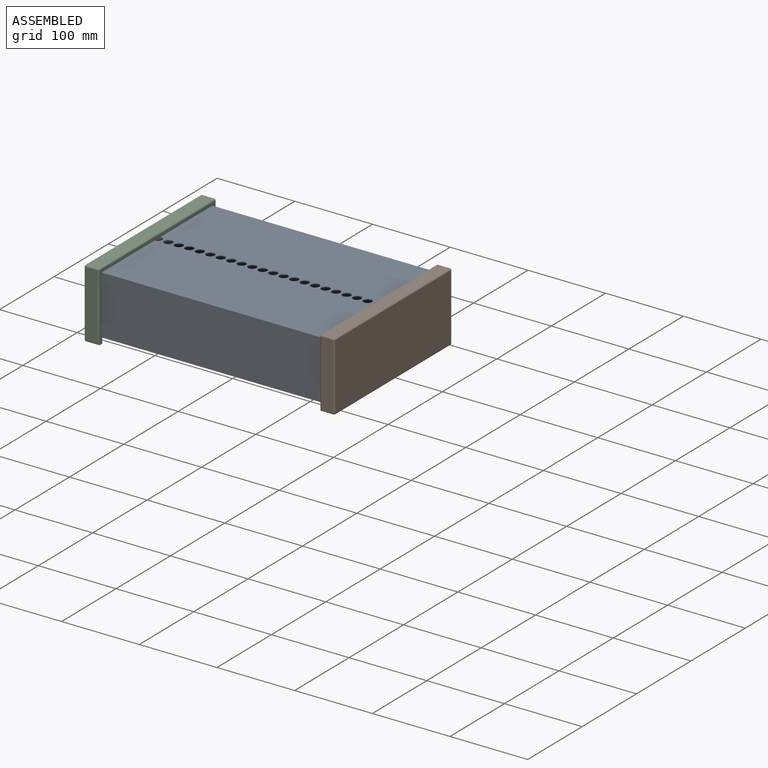
[diagram: assembled view]
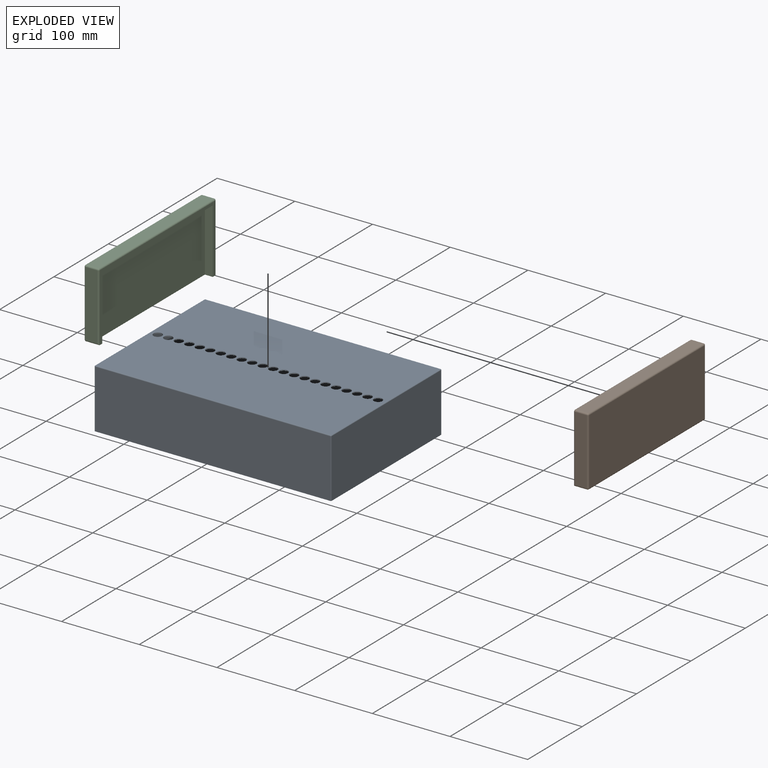
[diagram: exploded view]
GUIDED TOUR — MATED ASSEMBLY (Onshape document 46d64293dee30881ef092de6, AutoMate assembly 46d64293dee30881ef092de6_4c1113762a8dfd74307f1866_f7a12be5941819f00fa95c3b_default)

This assembly has 3 components, labeled P0..P2 below (a component is one placed occurrence of a part; the same part can appear more than once), held together by 4 mates. A mate is a constraint between two components; its type names the relative motion it leaves free:
  PLANAR — leaves sliding in the plane through the listed point (normal = the listed direction) and rotation about that normal free.
Axis/direction vectors are unit vectors and 'through' points are millimeter coordinates, both in the assembly's world frame.

MATES
  1. PLANAR "Planar 4": P1 <-> P0, direction (0.000, 0.000, -1.000) through (162.93, 0.00, -3.69) mm
  2. PLANAR "Planar 2": P1 <-> P0, direction (-1.000, 0.000, 0.000) through (168.01, 0.00, -45.29) mm
  3. PLANAR "Planar 1": P2 <-> P0, direction (1.000, 0.000, 0.000) through (-136.79, 0.00, -45.29) mm
  4. PLANAR "Planar 3": P2 <-> P0, direction (0.000, 0.000, -1.000) through (-131.71, 0.00, -3.69) mm

ASSEMBLY ORDER
  1. P2 — the base component [order verified]
  2. P0 [order verified]
  3. P1 [order verified]
Order-tag legend:
  [order verified] — this step's position reverses a verified removal order: the component was checked to insert without passing through the ones already placed.

Of the 3 components, 3 carry the full construction recipe — the FeatureScript program that regenerates the part's solid from scratch; the rest are supplied as boundary geometry only.
Each toured component is shown spotlighted twice — in the assembled view, then in the exploded view, where a leader line traces a displaced component back to its assembled socket (saturated green if recipe-attached, orange if geometry-only; every other component desaturated gray) — followed by its recipe or geometry summary and the mates that hold it.
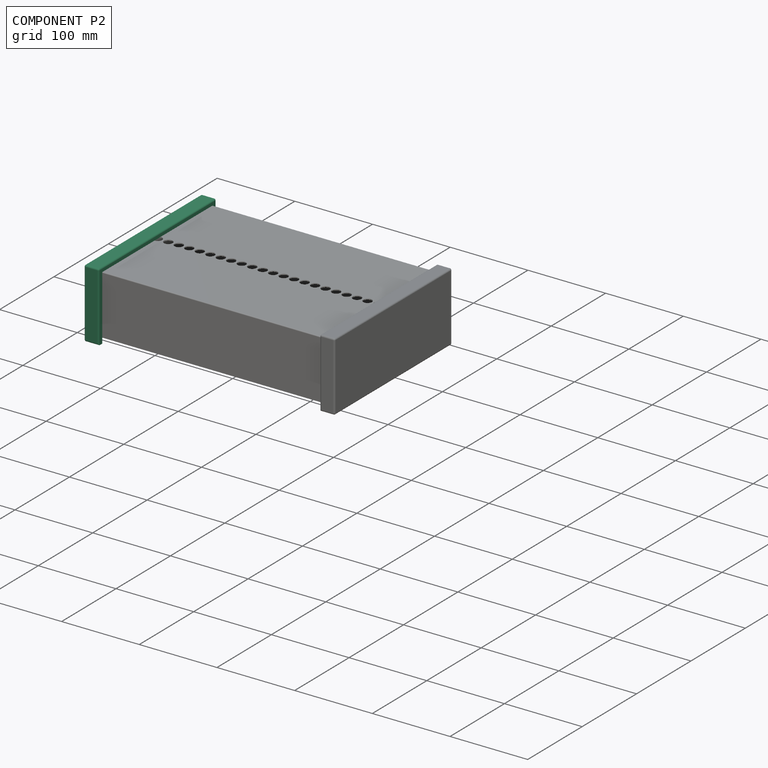
[diagram: component P2 — assembled]
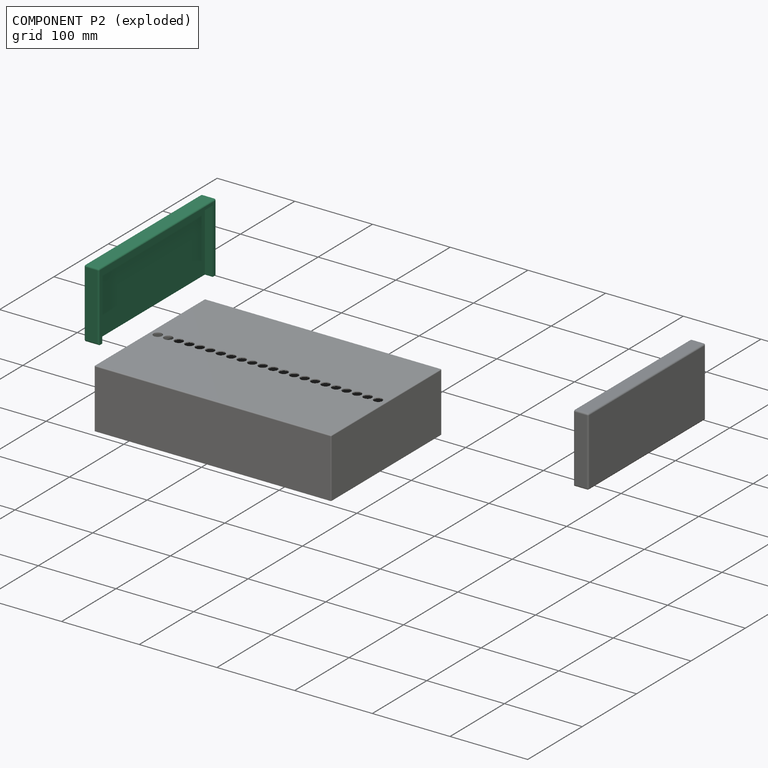
[diagram: component P2 — exploded]
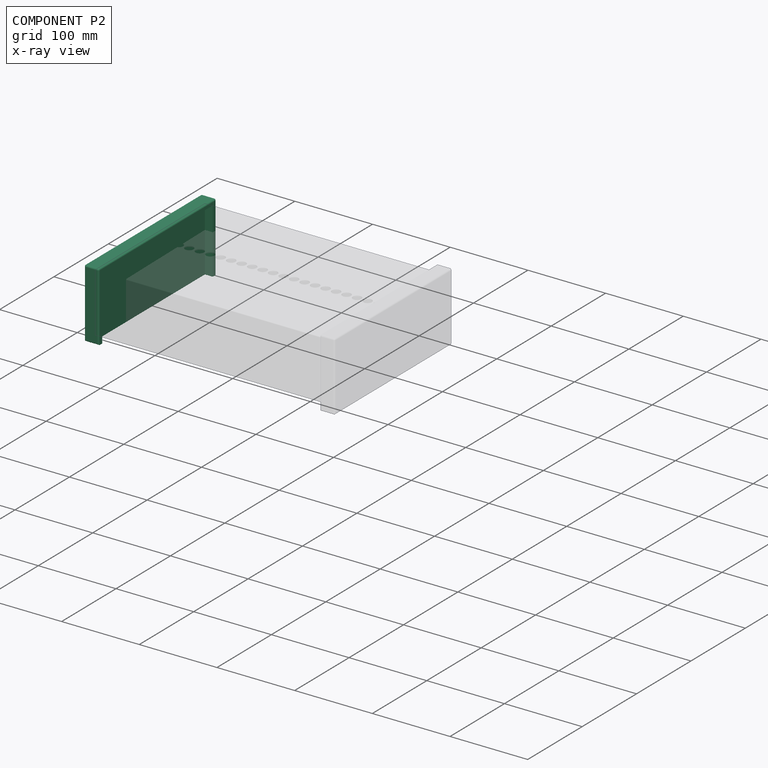
[diagram: component P2 — x-ray view]
COMPONENT P2 — same part as P1 (CADFS 00965437); its construction recipe is shown at P1.
Held by: PLANAR mate "Planar 1" to P0; PLANAR mate "Planar 3" to P0.
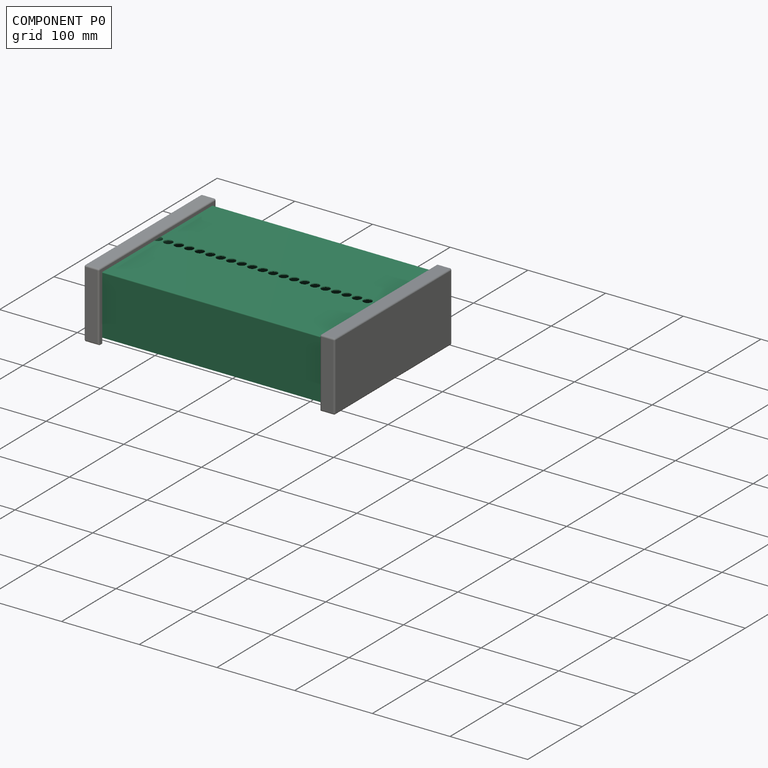
[diagram: component P0 — assembled]
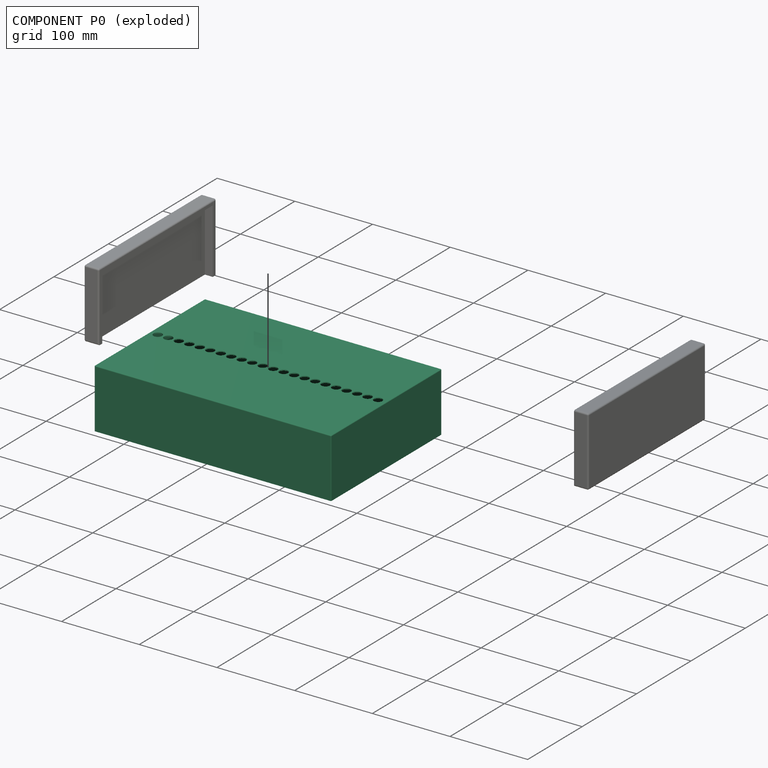
[diagram: component P0 — exploded]
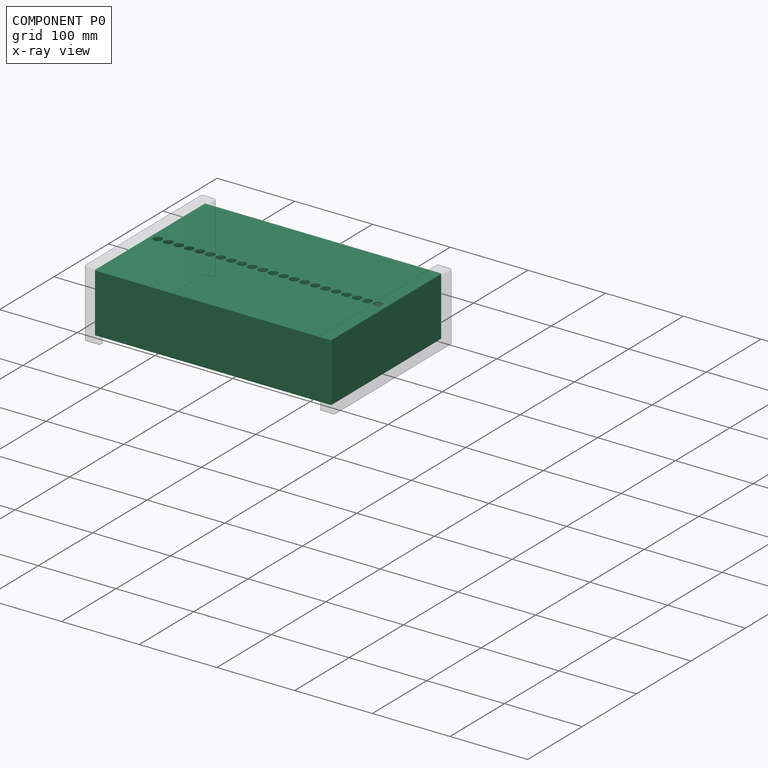
[diagram: component P0 — x-ray view]
COMPONENT P0 — recipe-attached (CADFS 00965439, mesh-verified: the recipe's output STEP matches this component's geometry to below the mesh-comparison resolution (tessellation chordal tolerance ~0.561 mm)).
Held by: PLANAR mate "Planar 4" to P1; PLANAR mate "Planar 2" to P1; PLANAR mate "Planar 1" to P2; PLANAR mate "Planar 3" to P2.
Construction recipe (FeatureScript — the CAD program that rebuilds this solid; sketch coordinates are in the units given by the * unit suffixes, e.g. mm):

FeatureScript 1511;
import(path : "onshape/std/geometry.fs", version : "1511.0");
import(path : "onshape/std/common.fs", version : "1511.0");
const mm = millimeter;
const VERTEX = EntityType.VERTEX;
const EDGE = EntityType.EDGE;
const FACE = EntityType.FACE;
const BODY = EntityType.BODY;
function v(x, y){return vector(x, y);}
function OD(order){return orderDisambiguation(order);}
function OSD(set){return originalSetDisambiguation(set);}
function TD(topology){return topologyDisambiguation(topology);}
function TDD(query){return trueDependencyDisambiguation(query);}
function sQuery(a, b, c) {return sketchEntityQuery(a, b, c);}

annotation { "Feature Type Name" : "Feature", "Feature Type Description" : "" }
export const myFeature = defineFeature(function(context is Context, id is Id, definition is map)
    precondition{}
    {
        {
            var Q0;
            Q0=qCreatedBy(makeId("Top.planeOp"),FACE);
            var sketch = newSketch(context, id + "F0", { "sketchPlane" : qUnion([Q0])});
            skLineSegment(sketch, "E0.bottom", {"start": v(-152.4, 101.6) * mm, "end": v(152.4, 101.6) * mm});
            skLineSegment(sketch, "E0.top", {"start": v(-152.4, -101.6) * mm, "end": v(152.4, -101.6) * mm});
            skLineSegment(sketch, "E0.left", {"start": v(-152.4, 101.6) * mm, "end": v(-152.4, -101.6) * mm});
            skLineSegment(sketch, "E0.right", {"start": v(152.4, 101.6) * mm, "end": v(152.4, -101.6) * mm});
            skPoint(sketch, "E0.middle", {"position": v(0, 0) * mm});
            skSolve(sketch);
        }
        {
            var Q0;
            Q0 = qSketchRegion(id + "F0", true);
            extrude(context, id + "F1", {"entities" : qUnion([Q0]), "depth" : 76.2 * mm, "offsetDistance" : 25 * mm});
        }
        {
            var Q0;
            Q0=makeQuery(id+"F1.opExtrude","CAP_EDGE",EDGE,{"disambiguationData":[OSD([sQuery(id+"F0.wireOp",EDGE,"E0.top")])],"isStart":false});
            var Q1;
            Q1=makeQuery(id+"F1.opExtrude","SWEPT_EDGE",EDGE,{"disambiguationData":[OSD([sQuery(id+"F0.wireOp",EDGE,"E0.top"),sQuery(id+"F0.wireOp",EDGE,"E0.left")])]});
            var Q2;
            Q2=makeQuery(id+"F1.opExtrude","CAP_EDGE",EDGE,{"disambiguationData":[OSD([sQuery(id+"F0.wireOp",EDGE,"E0.left")])],"isStart":false});
            var Q3;
            Q3=makeQuery(id+"F1.opExtrude","CAP_EDGE",EDGE,{"disambiguationData":[OSD([sQuery(id+"F0.wireOp",EDGE,"E0.right")])],"isStart":false});
            var Q4;
            Q4=makeQuery(id+"F1.opExtrude","CAP_EDGE",EDGE,{"disambiguationData":[OSD([sQuery(id+"F0.wireOp",EDGE,"E0.bottom")])],"isStart":false});
            var Q5;
            Q5=makeQuery(id+"F1.opExtrude","SWEPT_EDGE",EDGE,{"disambiguationData":[OSD([sQuery(id+"F0.wireOp",EDGE,"E0.bottom"),sQuery(id+"F0.wireOp",EDGE,"E0.right")])]});
            var Q6;
            Q6=makeQuery(id+"F1.opExtrude","SWEPT_EDGE",EDGE,{"disambiguationData":[OSD([sQuery(id+"F0.wireOp",EDGE,"E0.top"),sQuery(id+"F0.wireOp",EDGE,"E0.right")])]});
            var Q7;
            Q7=makeQuery(id+"F1.opExtrude","SWEPT_EDGE",EDGE,{"disambiguationData":[OSD([sQuery(id+"F0.wireOp",EDGE,"E0.bottom"),sQuery(id+"F0.wireOp",EDGE,"E0.left")])]});
            fillet(context, id + "F2", {"entities" : qUnion([Q0, Q1, Q2, Q3, Q4, Q5, Q6, Q7]), "radius" : 1 * mm, "tangentPropagation" : true, "allowEdgeOverflow" : false});
        }
        {
            var Q0;
            Q0=makeQuery(id+"F1.opExtrude","CAP_FACE",FACE,{"disambiguationData":[OSD([sQuery(id+"F0.wireOp",EDGE,"E0.bottom"),sQuery(id+"F0.wireOp",EDGE,"E0.top"),sQuery(id+"F0.wireOp",EDGE,"E0.left"),sQuery(id+"F0.wireOp",EDGE,"E0.right")])],"isStart":true});
            shell(context, id + "F3", {"entities" : qUnion([Q0]), "thickness" : 1.3 * mm});
        }
        {
            var Q0;
            Q0=makeQuery(id+"F1.opExtrude","CAP_FACE",FACE,{"disambiguationData":[OSD([sQuery(id+"F0.wireOp",EDGE,"E0.bottom"),sQuery(id+"F0.wireOp",EDGE,"E0.top"),sQuery(id+"F0.wireOp",EDGE,"E0.left"),sQuery(id+"F0.wireOp",EDGE,"E0.right")])],"isStart":false});
            var sketch = newSketch(context, id + "F4", { "sketchPlane" : qUnion([Q0])});
            skLineSegment(sketch, "E1", {"start": v(-204.18, 0) * mm, "end": v(190.05, 0) * mm, "construction": true});
            skCircle(sketch, "E2", {"center": v(-141.82, 0) * mm, "radius": 5.5 * mm});
            skCircle(sketch, "E3.1.0.0", {"center": v(-128.32, 0) * mm, "radius": 5.5 * mm});
            skCircle(sketch, "E3.2.0.0", {"center": v(-114.82, 0) * mm, "radius": 5.5 * mm});
            skCircle(sketch, "E3.3.0.0", {"center": v(-101.32, 0) * mm, "radius": 5.5 * mm});
            skCircle(sketch, "E3.4.0.0", {"center": v(-87.82, 0) * mm, "radius": 5.5 * mm});
            skCircle(sketch, "E3.5.0.0", {"center": v(-74.32, 0) * mm, "radius": 5.5 * mm});
            skCircle(sketch, "E3.6.0.0", {"center": v(-60.82, 0) * mm, "radius": 5.5 * mm});
            skCircle(sketch, "E3.7.0.0", {"center": v(-47.32, 0) * mm, "radius": 5.5 * mm});
            skCircle(sketch, "E3.8.0.0", {"center": v(-33.82, 0) * mm, "radius": 5.5 * mm});
            skCircle(sketch, "E3.9.0.0", {"center": v(-20.32, 0) * mm, "radius": 5.5 * mm});
            skCircle(sketch, "E3.10.0.0", {"center": v(-6.82, 0) * mm, "radius": 5.5 * mm});
            skCircle(sketch, "E3.11.0.0", {"center": v(6.68, 0) * mm, "radius": 5.5 * mm});
            skCircle(sketch, "E3.12.0.0", {"center": v(20.18, 0) * mm, "radius": 5.5 * mm});
            skCircle(sketch, "E3.13.0.0", {"center": v(33.68, 0) * mm, "radius": 5.5 * mm});
            skCircle(sketch, "E3.14.0.0", {"center": v(47.18, 0) * mm, "radius": 5.5 * mm});
            skCircle(sketch, "E3.15.0.0", {"center": v(60.68, 0) * mm, "radius": 5.5 * mm});
            skCircle(sketch, "E3.16.0.0", {"center": v(74.18, 0) * mm, "radius": 5.5 * mm});
            skCircle(sketch, "E3.17.0.0", {"center": v(87.68, 0) * mm, "radius": 5.5 * mm});
            skCircle(sketch, "E3.18.0.0", {"center": v(101.18, 0) * mm, "radius": 5.5 * mm});
            skCircle(sketch, "E3.19.0.0", {"center": v(114.68, 0) * mm, "radius": 5.5 * mm});
            skCircle(sketch, "E3.20.0.0", {"center": v(128.18, 0) * mm, "radius": 5.5 * mm});
            skCircle(sketch, "E3.21.0.0", {"center": v(141.68, 0) * mm, "radius": 5.5 * mm});
            skLineSegment(sketch, "E3.direction1", {"start": v(-141.82, 0) * mm, "end": v(-128.32, 0) * mm, "construction": true});
            skLineSegment(sketch, "E4", {"start": v(0, 115.73) * mm, "end": v(0, -128.04) * mm, "construction": true});
            skPoint(sketch, "E4.startSnap0", {"position": v(0, 100.6) * mm});
            skSolve(sketch);
        }
        {
            var Q0;
            Q0 = qSketchRegion(id + "F4", true);
            extrude(context, id + "F5", {"entities" : qUnion([Q0]), "operationType" : NewBodyOperationType.REMOVE, "endBound" : BoundingType.THROUGH_ALL, "oppositeDirection" : true, "depth" : 25 * mm, "offsetDistance" : 25 * mm});
        }
    });
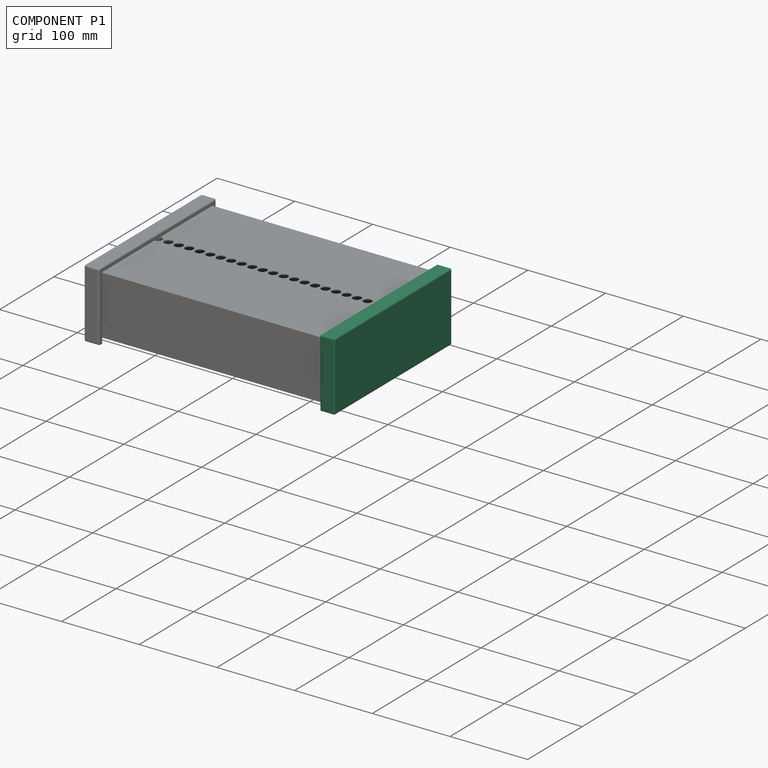
[diagram: component P1 — assembled]
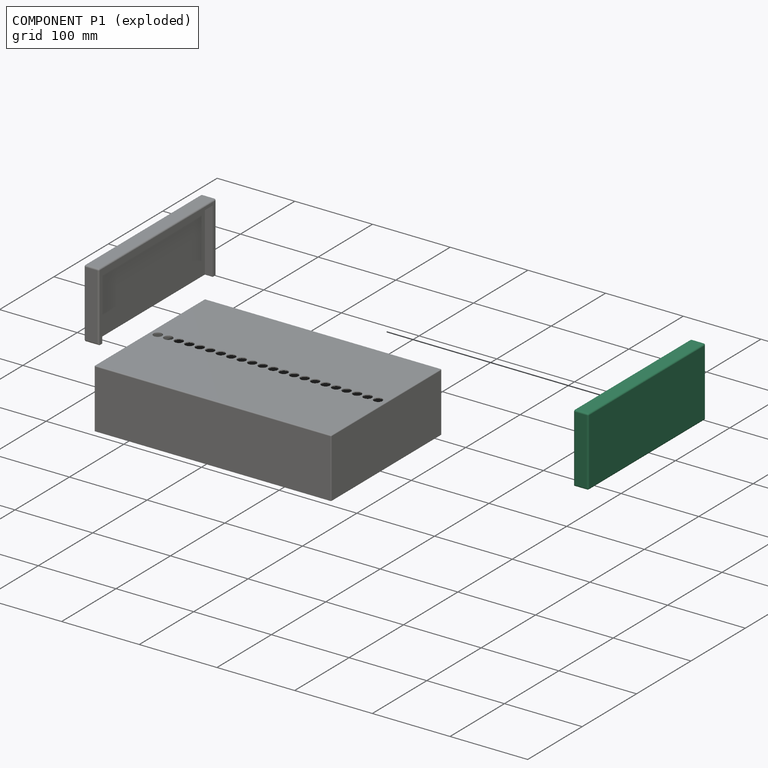
[diagram: component P1 — exploded]
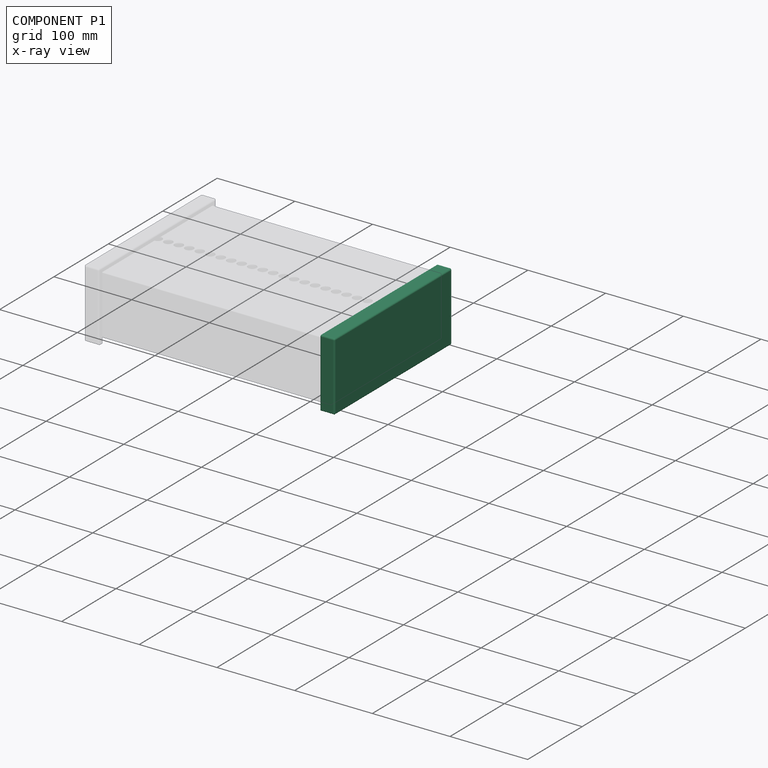
[diagram: component P1 — x-ray view]
COMPONENT P1 — recipe-attached (CADFS 00965437, mesh-verified: the recipe's output STEP matches this component's geometry to below the mesh-comparison resolution (tessellation chordal tolerance ~0.351 mm)).
Held by: PLANAR mate "Planar 4" to P0; PLANAR mate "Planar 2" to P0.
Construction recipe (FeatureScript — the CAD program that rebuilds this solid; sketch coordinates are in the units given by the * unit suffixes, e.g. mm):

FeatureScript 1511;
import(path : "onshape/std/geometry.fs", version : "1511.0");
import(path : "onshape/std/common.fs", version : "1511.0");
const mm = millimeter;
const VERTEX = EntityType.VERTEX;
const EDGE = EntityType.EDGE;
const FACE = EntityType.FACE;
const BODY = EntityType.BODY;
function v(x, y){return vector(x, y);}
function OD(order){return orderDisambiguation(order);}
function OSD(set){return originalSetDisambiguation(set);}
function TD(topology){return topologyDisambiguation(topology);}
function TDD(query){return trueDependencyDisambiguation(query);}
function sQuery(a, b, c) {return sketchEntityQuery(a, b, c);}

annotation { "Feature Type Name" : "Feature", "Feature Type Description" : "" }
export const myFeature = defineFeature(function(context is Context, id is Id, definition is map)
    precondition{}
    {
        {
            var Q0;
            Q0=qCreatedBy(makeId("Top.planeOp"),FACE);
            var sketch = newSketch(context, id + "F0", { "sketchPlane" : qUnion([Q0])});
            skLineSegment(sketch, "E0.bottom", {"start": v(9.53, -107.95) * mm, "end": v(-9.52, -107.95) * mm});
            skLineSegment(sketch, "E0.top", {"start": v(9.52, 107.95) * mm, "end": v(-9.53, 107.95) * mm});
            skLineSegment(sketch, "E0.left", {"start": v(9.53, -107.95) * mm, "end": v(9.52, 107.95) * mm});
            skLineSegment(sketch, "E0.right", {"start": v(-9.52, -107.95) * mm, "end": v(-9.53, 107.95) * mm});
            skPoint(sketch, "E0.middle", {"position": v(0, 0) * mm});
            skSolve(sketch);
        }
        {
            var Q0;
            {var subQ4=sQuery(id+"F0.wireOp",EDGE,"E0.bottom");Q0=makeQuery(id+"F0.imprint","IMPRINT",FACE,{"disambiguationData":[TD([[makeQuery(id+"F0.imprint","IMPRINT",EDGE,{"derivedFrom":subQ4}),-1.0]])]});}
            var Q1;
            Q1=makeQuery(id+"F0.imprint","IMPRINT",FACE,{"disambiguationData":[TD([[makeQuery(id+"F0.imprint","IMPRINT",EDGE,{"derivedFrom":sQuery(id+"F0.wireOp",EDGE,"CqbxAs32-swxf-Njvs-v4lD-9BbbaOkjSHAn.bottom")}),-1.0]])]});
            var Q2;
            Q2=sQuery(id+"F0.wireOp",EDGE,"E0.right");
            var Q3;
            Q3=sQuery(id+"F0.wireOp",EDGE,"E0.top");
            var Q4;
            Q4=sQuery(id+"F0.wireOp",EDGE,"E0.left");
            var Q5;
            Q5=sQuery(id+"F0.wireOp",EDGE,"E0.bottom");
            extrude(context, id + "F1", {"entities" : qUnion([Q0, Q1]), "surfaceEntities" : qUnion([Q2, Q3, Q4, Q5]), "depth" : 88.9 * mm, "offsetDistance" : 25 * mm});
        }
        {
            var Q0;
            Q0=makeQuery(id+"F1.opExtrude","SWEPT_FACE",FACE,{"disambiguationData":[OSD([sQuery(id+"F0.wireOp",EDGE,"E0.left")])]});
            var sketch = newSketch(context, id + "F2", { "sketchPlane" : qUnion([Q0])});
            skLineSegment(sketch, "E1.bottom", {"start": v(-101.6, 83.2) * mm, "end": v(101.6, 83.2) * mm});
            skLineSegment(sketch, "E1.top", {"start": v(-101.6, 0) * mm, "end": v(101.6, 0) * mm});
            skLineSegment(sketch, "E1.left", {"start": v(-101.6, 83.2) * mm, "end": v(-101.6, 0) * mm});
            skLineSegment(sketch, "E1.right", {"start": v(101.6, 83.2) * mm, "end": v(101.6, 0) * mm});
            skLineSegment(sketch, "E2", {"start": v(0, 88.9) * mm, "end": v(0, -17.95) * mm, "construction": true});
            skSolve(sketch);
        }
        {
            var Q0;
            Q0 = qSketchRegion(id + "F2", true);
            extrude(context, id + "F3", {"entities" : qUnion([Q0]), "operationType" : NewBodyOperationType.REMOVE, "oppositeDirection" : true, "depth" : 10.16 * mm, "offsetDistance" : 25 * mm});
        }
        {
            var Q0;
            Q0=makeQuery(id+"F1.opExtrude","CAP_EDGE",EDGE,{"disambiguationData":[OSD([sQuery(id+"F0.wireOp",EDGE,"E0.right")])],"isStart":false});
            var Q1;
            Q1=makeQuery(id+"F1.opExtrude","CAP_EDGE",EDGE,{"disambiguationData":[OSD([sQuery(id+"F0.wireOp",EDGE,"E0.bottom")])],"isStart":false});
            var Q2;
            Q2=makeQuery(id+"F1.opExtrude","SWEPT_EDGE",EDGE,{"disambiguationData":[OSD([sQuery(id+"F0.wireOp",EDGE,"E0.bottom"),sQuery(id+"F0.wireOp",EDGE,"E0.right")])]});
            var Q3;
            Q3=makeQuery(id+"F1.opExtrude","SWEPT_EDGE",EDGE,{"disambiguationData":[OSD([sQuery(id+"F0.wireOp",EDGE,"E0.top"),sQuery(id+"F0.wireOp",EDGE,"E0.right")])]});
            var Q4;
            Q4=makeQuery(id+"F1.opExtrude","CAP_EDGE",EDGE,{"disambiguationData":[OSD([sQuery(id+"F0.wireOp",EDGE,"E0.top")])],"isStart":false});
            var Q5;
            Q5=makeQuery(id+"F1.opExtrude","CAP_EDGE",EDGE,{"disambiguationData":[OSD([sQuery(id+"F0.wireOp",EDGE,"E0.left")])],"isStart":false});
            var Q6;
            Q6=makeQuery(id+"F1.opExtrude","SWEPT_EDGE",EDGE,{"disambiguationData":[OSD([sQuery(id+"F0.wireOp",EDGE,"E0.bottom"),sQuery(id+"F0.wireOp",EDGE,"E0.left")])]});
            var Q7;
            Q7=makeQuery(id+"F1.opExtrude","SWEPT_EDGE",EDGE,{"disambiguationData":[OSD([sQuery(id+"F0.wireOp",EDGE,"E0.top"),sQuery(id+"F0.wireOp",EDGE,"E0.left")])]});
            var Q8;
            Q8=makeQuery(id+"F1.opExtrude","CAP_EDGE",EDGE,{"disambiguationData":[OSD([sQuery(id+"F0.wireOp",EDGE,"E0.right")])],"isStart":true});
            var Q9;
            Q9=makeQuery(id+"F1.opExtrude","CAP_EDGE",EDGE,{"disambiguationData":[OSD([sQuery(id+"F0.wireOp",EDGE,"E0.top")])],"isStart":true});
            var Q10;
            Q10=makeQuery(id+"F1.opExtrude","CAP_EDGE",EDGE,{"disambiguationData":[OSD([sQuery(id+"F0.wireOp",EDGE,"E0.bottom")])],"isStart":true});
            fillet(context, id + "F4", {"entities" : qUnion([Q0, Q1, Q2, Q3, Q4, Q5, Q6, Q7, Q8, Q9, Q10]), "radius" : 2 * mm, "tangentPropagation" : true, "allowEdgeOverflow" : false});
        }
    });
PROVENANCE & LICENSES
Assembly (occurrences, transforms, mates, per-part STEP geometry): AutoMate dataset, Zenodo record 7776208, CC0.
Construction recipes: CADFS (HuggingFace VladPyatov/CADFS, CC-BY-4.0, layered over the ABC dataset), FeatureScript reconstruction programs keyed by ABC model id.
Join: ABC meta listings map ABC model id -> Onshape documentId; within a shared document, parts are matched by geometric signature (bounding-box dims + volume at 0.1% relative tolerance, exact B-rep face/solid counts).
Verification: 3 of this assembly's 3 components carry a recipe attachment, and every attachment is mesh-verified: the CADFS STEP and the AutoMate member STEP were compared as meshes in their shared local frame (symmetric sampled-point-to-mesh distance); worst across the 3 attachments: below the mesh-comparison resolution (tessellation chordal tolerance ~0.561 mm) on a 374 mm part.
Renders: orthographic iso camera (az 35 / el 25); the floor grid conveys scale (grid pitch printed in each image; no ruler). In the exploded view each component is displaced by its stored offset vector: the offsets alone carry the explosion direction (mate normal/axis signs are not orientation cues and do not encode it), and separation distances are assigned per mate-chain, not proportionally to assembly-order depth.
